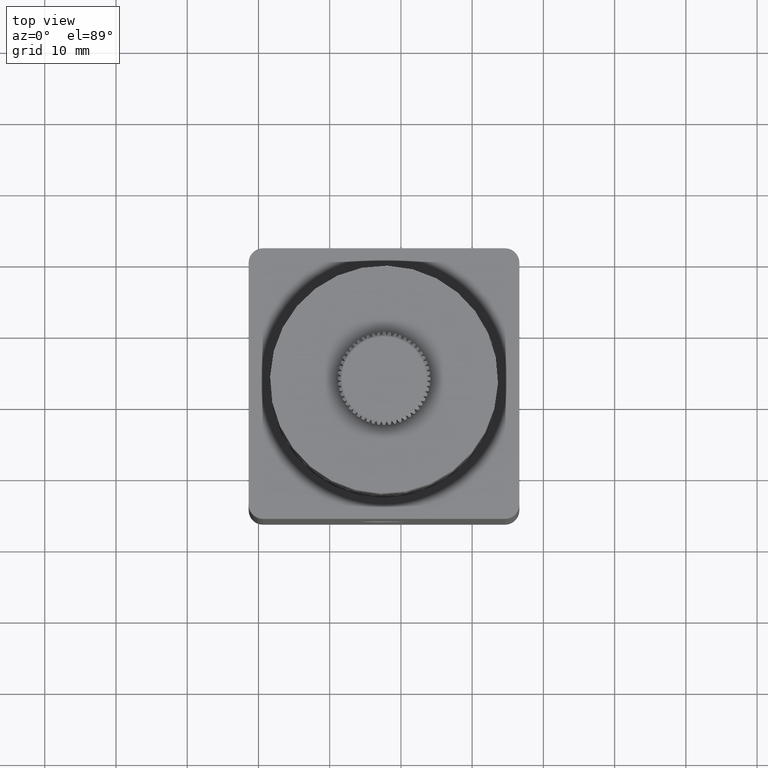
[diagram: clean part render]
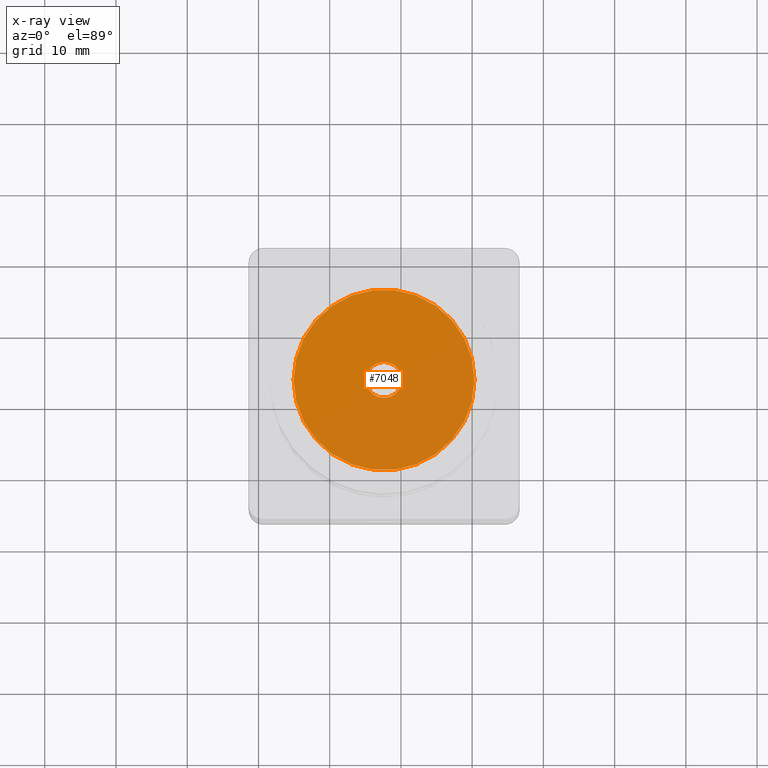
[diagram: x-ray — body ghosted, one internal face saturated and labeled with its STEP entity id]
A machine part, top view, then the same camera in x-ray: the body is ghosted and one INTERNAL B-rep face — a face not visible from any outside direction — is saturated and labeled: STEP entity #7048.
In plain terms, the highlighted planar face has unit normal (0, 0, 1).
Its self-contained STEP definition (entity closure, byte-faithful):
#55 = VERTEX_POINT ( 'NONE', #5813 ) ;
#217 = DIRECTION ( 'NONE',  ( 1.000000000000000000, 0.0000000000000000000, 0.0000000000000000000 ) ) ;
#269 = CARTESIAN_POINT ( 'NONE',  ( 37.62291667820559100, 52.78689962133746900, 79.22749317272970900 ) ) ;
#290 = CIRCLE ( 'NONE', #5570, 12.69999999999999600 ) ;
#334 = AXIS2_PLACEMENT_3D ( 'NONE', #3027, #5606, #2417 ) ;
#815 = EDGE_CURVE ( 'NONE', #1054, #55, #918, .T. ) ;
#818 = CIRCLE ( 'NONE', #7937, 2.500000000000002200 ) ;
#918 = CIRCLE ( 'NONE', #334, 12.69999999999999600 ) ;
#984 = DIRECTION ( 'NONE',  ( 1.000000000000000000, 0.0000000000000000000, 0.0000000000000000000 ) ) ;
#1054 = VERTEX_POINT ( 'NONE', #2741 ) ;
#1060 = ORIENTED_EDGE ( 'NONE', *, *, #815, .T. ) ;
#1557 = DIRECTION ( 'NONE',  ( -0.0000000000000000000, -0.0000000000000000000, 1.000000000000000000 ) ) ;
#1608 = DIRECTION ( 'NONE',  ( 0.0000000000000000000, 0.0000000000000000000, 1.000000000000000000 ) ) ;
#1840 = DIRECTION ( 'NONE',  ( 0.0000000000000000000, 0.0000000000000000000, 1.000000000000000000 ) ) ;
#1878 = VERTEX_POINT ( 'NONE', #1904 ) ;
#1904 = CARTESIAN_POINT ( 'NONE',  ( 40.12291667820559100, 52.78689962133746900, 79.22749317272970900 ) ) ;
#1942 = CARTESIAN_POINT ( 'NONE',  ( 35.12291667820558400, 52.78689962133746900, 79.22749317272970900 ) ) ;
#2048 = ORIENTED_EDGE ( 'NONE', *, *, #8232, .T. ) ;
#2107 = VERTEX_POINT ( 'NONE', #1942 ) ;
#2146 = CIRCLE ( 'NONE', #3467, 2.500000000000002200 ) ;
#2173 = DIRECTION ( 'NONE',  ( 1.000000000000000000, 0.0000000000000000000, -0.0000000000000000000 ) ) ;
#2417 = DIRECTION ( 'NONE',  ( 1.000000000000000000, 0.0000000000000000000, 0.0000000000000000000 ) ) ;
#2741 = CARTESIAN_POINT ( 'NONE',  ( 50.32291667820558700, 52.78689962133746900, 79.22749317272970900 ) ) ;
#2794 = CARTESIAN_POINT ( 'NONE',  ( 37.62291667820559100, 52.78689962133746900, 79.22749317272970900 ) ) ;
#2862 = PLANE ( 'NONE',  #4490 ) ;
#3027 = CARTESIAN_POINT ( 'NONE',  ( 37.62291667820559100, 52.78689962133746900, 79.22749317272970900 ) ) ;
#3430 = FACE_BOUND ( 'NONE', #4110, .T. ) ;
#3467 = AXIS2_PLACEMENT_3D ( 'NONE', #2794, #1557, #217 ) ;
#3929 = ORIENTED_EDGE ( 'NONE', *, *, #6528, .F. ) ;
#4110 = EDGE_LOOP ( 'NONE', ( #8316, #3929 ) ) ;
#4490 = AXIS2_PLACEMENT_3D ( 'NONE', #5357, #1608, #2173 ) ;
#4824 = DIRECTION ( 'NONE',  ( -0.0000000000000000000, -0.0000000000000000000, 1.000000000000000000 ) ) ;
#5357 = CARTESIAN_POINT ( 'NONE',  ( 37.62291667820559100, 52.78689962133746900, 79.22749317272970900 ) ) ;
#5570 = AXIS2_PLACEMENT_3D ( 'NONE', #5649, #1840, #7530 ) ;
#5606 = DIRECTION ( 'NONE',  ( 0.0000000000000000000, 0.0000000000000000000, 1.000000000000000000 ) ) ;
#5649 = CARTESIAN_POINT ( 'NONE',  ( 37.62291667820559100, 52.78689962133746900, 79.22749317272970900 ) ) ;
#5813 = CARTESIAN_POINT ( 'NONE',  ( 24.92291667820558800, 52.78689962133746900, 79.22749317272970900 ) ) ;
#6528 = EDGE_CURVE ( 'NONE', #2107, #1878, #2146, .T. ) ;
#6841 = FACE_OUTER_BOUND ( 'NONE', #7009, .T. ) ;
#7009 = EDGE_LOOP ( 'NONE', ( #2048, #1060 ) ) ;
#7048 = ADVANCED_FACE ( 'NONE', ( #3430, #6841 ), #2862, .T. ) ;
#7070 = EDGE_CURVE ( 'NONE', #1878, #2107, #818, .T. ) ;
#7530 = DIRECTION ( 'NONE',  ( 1.000000000000000000, 0.0000000000000000000, 0.0000000000000000000 ) ) ;
#7937 = AXIS2_PLACEMENT_3D ( 'NONE', #269, #4824, #984 ) ;
#8232 = EDGE_CURVE ( 'NONE', #55, #1054, #290, .T. ) ;
#8316 = ORIENTED_EDGE ( 'NONE', *, *, #7070, .F. ) ;